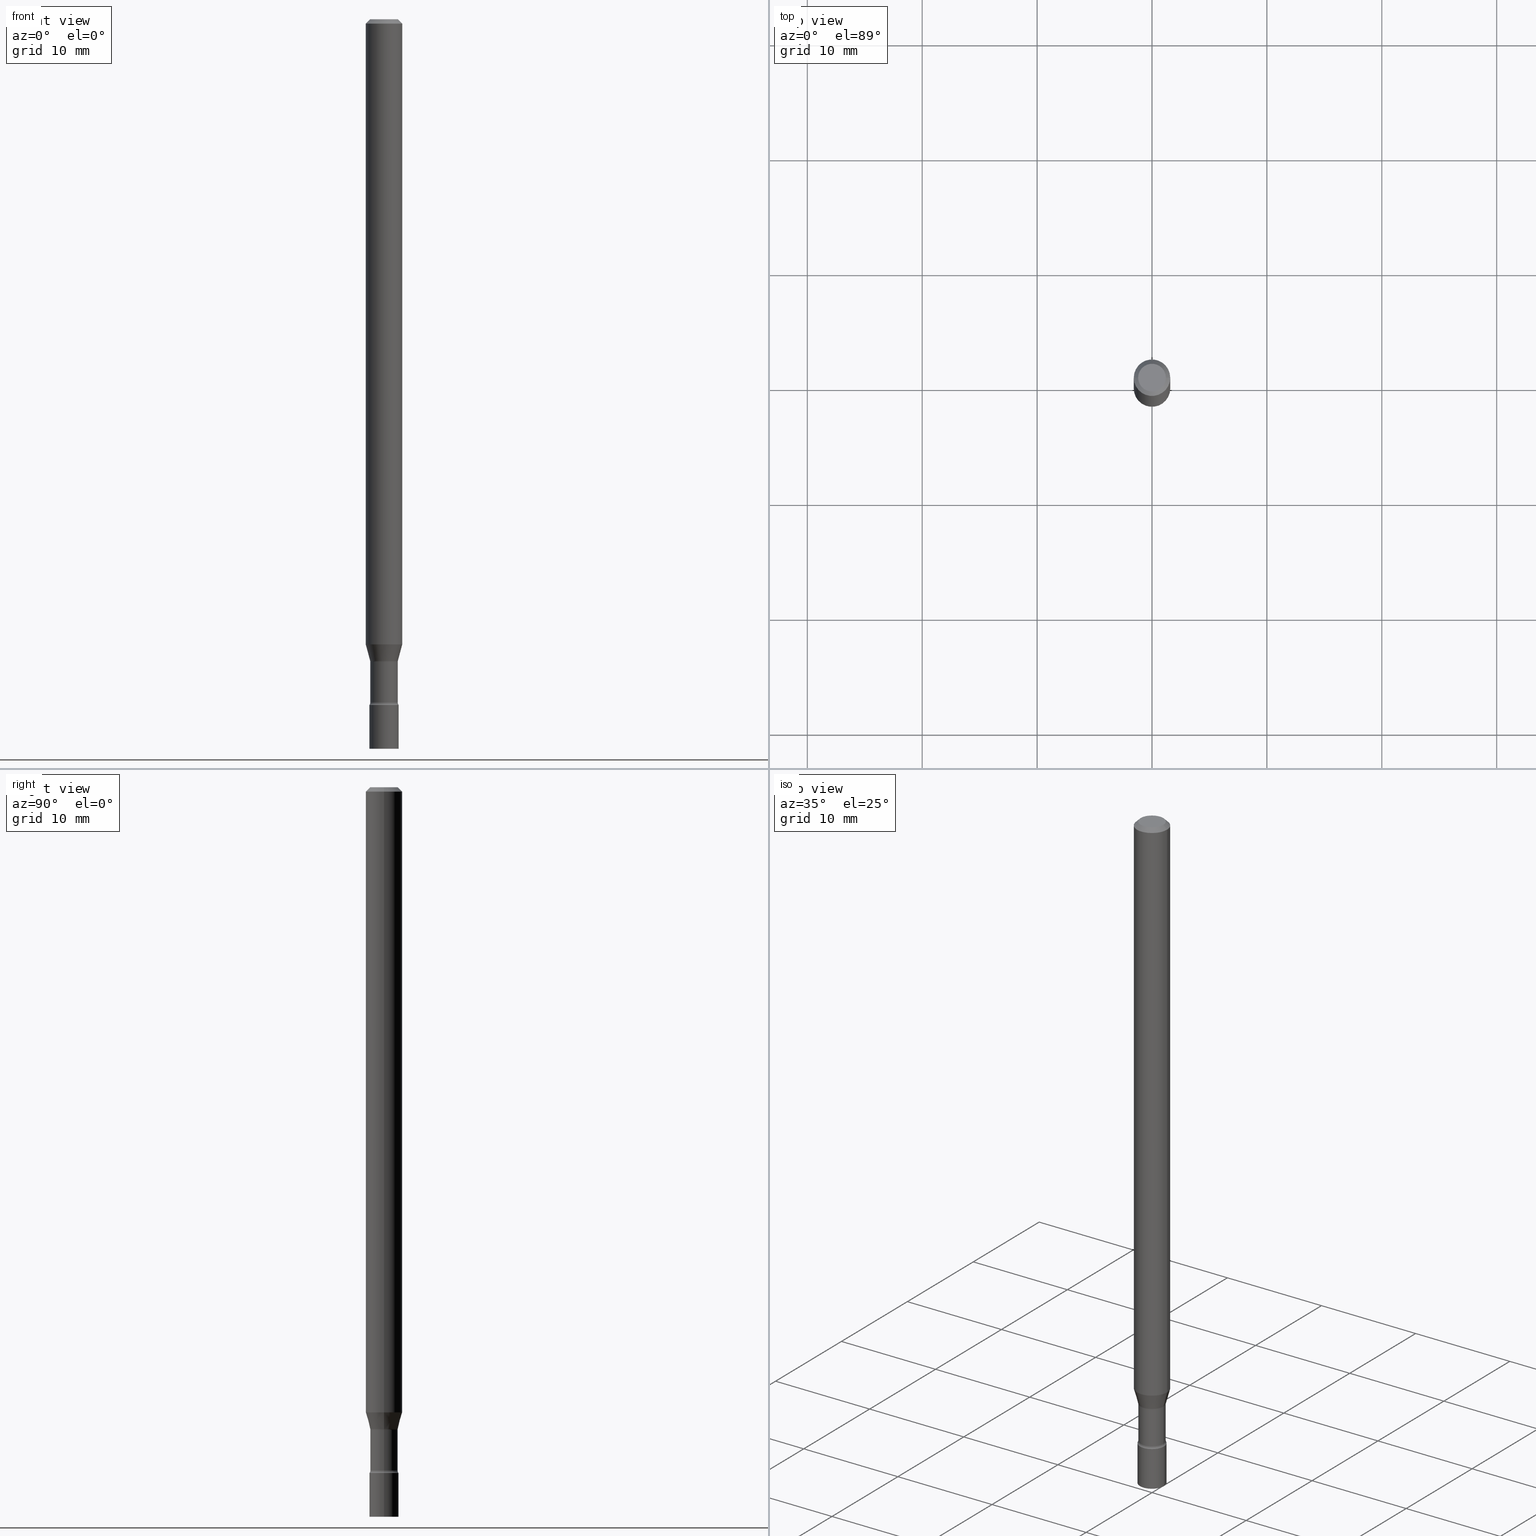
[diagram: canonical four-view strip — front | top / right | iso, engineering-drawing reading convention]
A machine part, canonical four-view strip (front | top / right | iso — engineering-drawing reading convention). The complete STEP part file that produces these views, byte-faithful:
ISO-10303-21;
HEADER;
FILE_DESCRIPTION (( 'STEP AP203' ),
    '1' );
FILE_NAME ('09760.STEP',
    '2024-03-09T01:46:32',
    ( '' ),
    ( '' ),
    'SwSTEP 2.0',
    'SolidWorks 2023',
    '' );
FILE_SCHEMA (( 'CONFIG_CONTROL_DESIGN' ));
ENDSEC;

DATA;
#1 = CARTESIAN_POINT ( 'NONE',  ( 3.491481338843744722E-16, 0.04999999999999128059, -2.500000000000000000 ) ) ;
#2 = DIRECTION ( 'NONE',  ( 2.445468806185136597E-29, -3.491481338843145583E-15, -1.000000000000000000 ) ) ;
#3 = CIRCLE ( 'NONE', #237, 0.04699999999999998623 ) ;
#4 = DIRECTION ( 'NONE',  ( 2.445468806185136597E-29, -3.491481338843145583E-15, -1.000000000000000000 ) ) ;
#5 = AXIS2_PLACEMENT_3D ( 'NONE', #14, #457, #186 ) ;
#6 = VECTOR ( 'NONE', #365, 39.37007874015748143 ) ;
#7 = CALENDAR_DATE ( 2024, 8, 3 ) ;
#8 = CARTESIAN_POINT ( 'NONE',  ( 0.06250000000000000000, -4.888073874380389458E-16, -0.01500000000000003067 ) ) ;
#9 =( NAMED_UNIT ( * ) SI_UNIT ( $, .STERADIAN. ) SOLID_ANGLE_UNIT ( ) );
#10 = CC_DESIGN_SECURITY_CLASSIFICATION ( #399, ( #262 ) ) ;
#11 = EDGE_CURVE ( 'NONE', #35, #382, #162, .T. ) ;
#12 = DIRECTION ( 'NONE',  ( 1.000000000000000000, -6.982962677686273021E-15, 0.000000000000000000 ) ) ;
#13 = PERSON_AND_ORGANIZATION_ROLE ( 'design_supplier' ) ;
#14 = CARTESIAN_POINT ( 'NONE',  ( 0.06199999999999999956, -8.121097565049546589E-15, -2.201974787463810923 ) ) ;
#15 = CARTESIAN_POINT ( 'NONE',  ( 3.491481338843707252E-16, 0.04999999999999180100, -2.350000000000000089 ) ) ;
#16 = EDGE_CURVE ( 'NONE', #110, #83, #370, .T. ) ;
#17 = DATE_AND_TIME ( #466, #243 ) ;
#18 = DIRECTION ( 'NONE',  ( 1.000000000000000000, -6.982962677686269077E-15, 0.000000000000000000 ) ) ;
#19 = AXIS2_PLACEMENT_3D ( 'NONE', #517, #311, #440 ) ;
#20 = EDGE_LOOP ( 'NONE', ( #240, #387 ) ) ;
#21 = AXIS2_PLACEMENT_3D ( 'NONE', #66, #212, #18 ) ;
#22 = ORIENTED_EDGE ( 'NONE', *, *, #170, .F. ) ;
#23 = DIRECTION ( 'NONE',  ( 1.000000000000000000, -6.982962677686274599E-15, 0.000000000000000000 ) ) ;
#24 = DIRECTION ( 'NONE',  ( -2.445468806185136877E-29, 3.491481338843145188E-15, 1.000000000000000000 ) ) ;
#25 = CARTESIAN_POINT ( 'NONE',  ( 0.05000000000000000278, -8.554129280165705119E-15, -2.349999999999999645 ) ) ;
#26 = EDGE_CURVE ( 'NONE', #35, #110, #513, .T. ) ;
#27 = ORIENTED_EDGE ( 'NONE', *, *, #516, .T. ) ;
#28 = CIRCLE ( 'NONE', #411, 0.05000000000000000278 ) ;
#29 = LOCAL_TIME ( 20, 46, 32.00000000000000000, #377 ) ;
#30 = AXIS2_PLACEMENT_3D ( 'NONE', #248, #410, #36 ) ;
#31 = DIRECTION ( 'NONE',  ( -2.445468806185136597E-29, 3.491481338843145583E-15, 1.000000000000000000 ) ) ;
#32 = FACE_OUTER_BOUND ( 'NONE', #213, .T. ) ;
#33 = EDGE_CURVE ( 'NONE', #286, #265, #360, .T. ) ;
#34 = FACE_OUTER_BOUND ( 'NONE', #501, .T. ) ;
#35 = VERTEX_POINT ( 'NONE', #108 ) ;
#36 = DIRECTION ( 'NONE',  ( 1.000000000000000000, -6.982962677686274599E-15, 0.000000000000000000 ) ) ;
#37 = EDGE_LOOP ( 'NONE', ( #68, #354, #269, #470 ) ) ;
#38 = DIRECTION ( 'NONE',  ( 1.000000000000000000, -6.982962677686267499E-15, 4.876176775795936353E-29 ) ) ;
#39 = DIRECTION ( 'NONE',  ( -2.445468806185136597E-29, 3.491481338843145583E-15, 1.000000000000000000 ) ) ;
#40 = CC_DESIGN_PERSON_AND_ORGANIZATION_ASSIGNMENT ( #56, #181, ( #468 ) ) ;
#41 = ORIENTED_EDGE ( 'NONE', *, *, #52, .T. ) ;
#42 = AXIS2_PLACEMENT_3D ( 'NONE', #317, #229, #71 ) ;
#43 = CC_DESIGN_APPROVAL ( #490, ( #468 ) ) ;
#44 = CARTESIAN_POINT ( 'NONE',  ( 5.384860654748895550E-29, -7.688153879032997927E-15, -2.201974787463810923 ) ) ;
#45 = DESIGN_CONTEXT ( 'detailed design', #277, 'design' ) ;
#46 = CONICAL_SURFACE ( 'NONE', #392, 0.06250000000000000000, 0.7853981633974483900 ) ;
#47 = ORIENTED_EDGE ( 'NONE', *, *, #359, .F. ) ;
#48 = PRODUCT_DEFINITION_SHAPE ( 'NONE', 'NONE',  #468 ) ;
#49 = CARTESIAN_POINT ( 'NONE',  ( 0.000000000000000000, 0.000000000000000000, 0.000000000000000000 ) ) ;
#50 = DIRECTION ( 'NONE',  ( 1.000000000000000000, -6.982962677686265922E-15, 4.876176775795935793E-29 ) ) ;
#51 = ORIENTED_EDGE ( 'NONE', *, *, #201, .T. ) ;
#52 = EDGE_CURVE ( 'NONE', #368, #189, #330, .T. ) ;
#53 = PERSON_AND_ORGANIZATION ( #217, #136 ) ;
#54 = DIRECTION ( 'NONE',  ( 1.000000000000000000, -6.982962677686266711E-15, 4.876176775795935793E-29 ) ) ;
#55 = ORIENTED_EDGE ( 'NONE', *, *, #338, .F. ) ;
#56 = PERSON_AND_ORGANIZATION ( #217, #136 ) ;
#57 = VECTOR ( 'NONE', #485, 39.37007874015748143 ) ;
#58 = DIRECTION ( 'NONE',  ( -2.445468806185136597E-29, 3.491481338843145583E-15, 1.000000000000000000 ) ) ;
#59 = ORIENTED_EDGE ( 'NONE', *, *, #291, .T. ) ;
#60 = AXIS2_PLACEMENT_3D ( 'NONE', #445, #4, #239 ) ;
#61 = PERSON_AND_ORGANIZATION ( #217, #136 ) ;
#62 = DIRECTION ( 'NONE',  ( -2.445468806185136597E-29, 3.491481338843145583E-15, 1.000000000000000000 ) ) ;
#63 = EDGE_CURVE ( 'NONE', #368, #393, #489, .T. ) ;
#64 = ORIENTED_EDGE ( 'NONE', *, *, #284, .T. ) ;
#65 =( LENGTH_UNIT ( ) NAMED_UNIT ( * ) SI_UNIT ( $, .METRE. ) );
#66 = CARTESIAN_POINT ( 'NONE',  ( 5.375366646230222807E-29, -7.674598951041308129E-15, -2.198092501787273001 ) ) ;
#67 = EDGE_LOOP ( 'NONE', ( #414, #391, #249, #104 ) ) ;
#68 = ORIENTED_EDGE ( 'NONE', *, *, #235, .T. ) ;
#69 = CYLINDRICAL_SURFACE ( 'NONE', #19, 0.04699999999999999317 ) ;
#70 = APPROVAL_DATE_TIME ( #17, #180 ) ;
#71 = DIRECTION ( 'NONE',  ( 1.000000000000000000, -6.982962677686269077E-15, 4.883557194083113462E-29 ) ) ;
#72 = CC_DESIGN_DATE_AND_TIME_ASSIGNMENT ( #93, #178, ( #468 ) ) ;
#73 = ORIENTED_EDGE ( 'NONE', *, *, #164, .F. ) ;
#74 = CARTESIAN_POINT ( 'NONE',  ( 0.04700000000000000705, -8.016353124884251642E-15, -2.201974787463810923 ) ) ;
#75 = APPROVAL_ROLE ( '' ) ;
#76 = ORIENTED_EDGE ( 'NONE', *, *, #208, .F. ) ;
#77 = CARTESIAN_POINT ( 'NONE',  ( 5.238568859195680907E-29, -7.479287966326182139E-15, -2.142153212482682534 ) ) ;
#78 = VECTOR ( 'NONE', #390, 39.37007874015748143 ) ;
#79 = AXIS2_PLACEMENT_3D ( 'NONE', #150, #117, #512 ) ;
#80 = CARTESIAN_POINT ( 'NONE',  ( 5.238568859195680907E-29, -7.479287966326182139E-15, -2.142153212482682534 ) ) ;
#81 = EDGE_CURVE ( 'NONE', #189, #216, #236, .T. ) ;
#82 = PLANE ( 'NONE',  #452 ) ;
#83 = VERTEX_POINT ( 'NONE', #8 ) ;
#84 = DIRECTION ( 'NONE',  ( -2.445468806185136597E-29, 3.491481338843145583E-15, 1.000000000000000000 ) ) ;
#85 = CARTESIAN_POINT ( 'NONE',  ( 0.000000000000000000, 0.000000000000000000, 0.000000000000000000 ) ) ;
#86 = PRODUCT ( '09760', '09760', '', ( #98 ) ) ;
#87 = PRODUCT_RELATED_PRODUCT_CATEGORY ( 'detail', '', ( #86 ) ) ;
#88 = DIRECTION ( 'NONE',  ( 1.000000000000000000, -6.982962677686267499E-15, 4.876681293081646444E-29 ) ) ;
#89 = CARTESIAN_POINT ( 'NONE',  ( 0.06200000000000002037, -8.606501500248351804E-15, -2.340999999999999748 ) ) ;
#90 = CYLINDRICAL_SURFACE ( 'NONE', #149, 0.05000000000000000278 ) ;
#91 = ORIENTED_EDGE ( 'NONE', *, *, #134, .T. ) ;
#92 = CIRCLE ( 'NONE', #437, 0.05000000000000000278 ) ;
#93 = DATE_AND_TIME ( #96, #366 ) ;
#94 = PLANE ( 'NONE',  #279 ) ;
#95 = ADVANCED_FACE ( 'NONE', ( #264 ), #375, .F. ) ;
#96 = CALENDAR_DATE ( 2024, 8, 3 ) ;
#97 = DIRECTION ( 'NONE',  ( -2.445468806185136597E-29, 3.491481338843145583E-15, 1.000000000000000000 ) ) ;
#98 = MECHANICAL_CONTEXT ( 'NONE', #472, 'mechanical' ) ;
#99 = CARTESIAN_POINT ( 'NONE',  ( 0.06250000000000000000, -7.915723133681573808E-15, -2.142153212482682534 ) ) ;
#100 = EDGE_LOOP ( 'NONE', ( #73, #226 ) ) ;
#101 = APPROVAL_STATUS ( 'not_yet_approved' ) ;
#102 = AXIS2_PLACEMENT_3D ( 'NONE', #494, #388, #173 ) ;
#103 = CARTESIAN_POINT ( 'NONE',  ( 5.724842475279403491E-29, -8.173557814231803142E-15, -2.340999999999999748 ) ) ;
#104 = ORIENTED_EDGE ( 'NONE', *, *, #372, .F. ) ;
#105 = VECTOR ( 'NONE', #515, 39.37007874015748143 ) ;
#106 = CALENDAR_DATE ( 2024, 8, 3 ) ;
#107 = EDGE_CURVE ( 'NONE', #449, #286, #438, .T. ) ;
#108 = CARTESIAN_POINT ( 'NONE',  ( -0.04749999999999999362, 3.578768372314209027E-16, -2.891391092787141902E-17 ) ) ;
#109 = ORIENTED_EDGE ( 'NONE', *, *, #198, .F. ) ;
#110 = VERTEX_POINT ( 'NONE', #227 ) ;
#111 = DIRECTION ( 'NONE',  ( 1.000000000000000000, -6.982962677686269077E-15, 4.883557194083113462E-29 ) ) ;
#112 = VERTEX_POINT ( 'NONE', #99 ) ;
#113 = CARTESIAN_POINT ( 'NONE',  ( 5.384860654748895550E-29, -7.688153879032997927E-15, -2.201974787463810923 ) ) ;
#114 = ORIENTED_EDGE ( 'NONE', *, *, #63, .T. ) ;
#115 = EDGE_CURVE ( 'NONE', #449, #374, #505, .T. ) ;
#116 = ORIENTED_EDGE ( 'NONE', *, *, #322, .T. ) ;
#117 = DIRECTION ( 'NONE',  ( -2.445468806185136597E-29, 3.491481338843145583E-15, 1.000000000000000000 ) ) ;
#118 = ADVANCED_FACE ( 'NONE', ( #225 ), #138, .T. ) ;
#119 = DIRECTION ( 'NONE',  ( -2.445468806185136597E-29, 3.491481338843145583E-15, 1.000000000000000000 ) ) ;
#120 = CIRCLE ( 'NONE', #321, 0.05000000000000000278 ) ;
#121 = LOCAL_TIME ( 20, 46, 32.00000000000000000, #296 ) ;
#122 = CARTESIAN_POINT ( 'NONE',  ( -0.06250000000000000000, -3.321740883354352190E-15, -0.01500000000000003067 ) ) ;
#123 = ORIENTED_EDGE ( 'NONE', *, *, #257, .F. ) ;
#124 = DIRECTION ( 'NONE',  ( 1.000000000000000000, -6.982962677686267499E-15, 4.876176775795936353E-29 ) ) ;
#125 = DIRECTION ( 'NONE',  ( 0.7071067811865475727, -7.319954787623256045E-15, -0.7071067811865474617 ) ) ;
#126 = AXIS2_PLACEMENT_3D ( 'NONE', #77, #200, #163 ) ;
#127 = ADVANCED_FACE ( 'NONE', ( #344 ), #142, .F. ) ;
#128 = AXIS2_PLACEMENT_3D ( 'NONE', #89, #455, #179 ) ;
#129 = CIRCLE ( 'NONE', #421, 0.04700000000000000705 ) ;
#130 = CARTESIAN_POINT ( 'NONE',  ( 7.070806723891919892E-46, -1.009523804376275404E-31, -2.891391092786900929E-17 ) ) ;
#131 = CARTESIAN_POINT ( 'NONE',  ( -0.04699999999999998623, -7.844656253412948961E-15, -2.341000000000000192 ) ) ;
#132 = ORIENTED_EDGE ( 'NONE', *, *, #208, .T. ) ;
#133 = PERSON_AND_ORGANIZATION ( #217, #136 ) ;
#134 = EDGE_CURVE ( 'NONE', #286, #216, #140, .T. ) ;
#135 = ORIENTED_EDGE ( 'NONE', *, *, #338, .T. ) ;
#136 = ORGANIZATION ( 'UNSPECIFIED', 'UNSPECIFIED', '' ) ;
#137 = DIRECTION ( 'NONE',  ( 0.000000000000000000, 0.000000000000000000, 1.000000000000000000 ) ) ;
#138 = CYLINDRICAL_SURFACE ( 'NONE', #439, 0.06250000000000000000 ) ;
#139 = PERSON_AND_ORGANIZATION ( #217, #136 ) ;
#140 = LINE ( 'NONE', #258, #78 ) ;
#141 = SECURITY_CLASSIFICATION_LEVEL ( 'unclassified' ) ;
#142 = PLANE ( 'NONE',  #351 ) ;
#143 = EDGE_LOOP ( 'NONE', ( #132, #345 ) ) ;
#144 = ADVANCED_FACE ( 'NONE', ( #177 ), #156, .T. ) ;
#145 = AXIS2_PLACEMENT_3D ( 'NONE', #80, #402, #362 ) ;
#146 = EDGE_LOOP ( 'NONE', ( #356, #336, #465, #420 ) ) ;
#147 = AXIS2_PLACEMENT_3D ( 'NONE', #424, #508, #297 ) ;
#148 = LINE ( 'NONE', #308, #446 ) ;
#149 = AXIS2_PLACEMENT_3D ( 'NONE', #165, #84, #124 ) ;
#150 = CARTESIAN_POINT ( 'NONE',  ( 3.668203209277712094E-31, -5.237222008264728876E-17, -0.01500000000000003067 ) ) ;
#151 = EDGE_CURVE ( 'NONE', #189, #368, #220, .T. ) ;
#152 = ORIENTED_EDGE ( 'NONE', *, *, #516, .F. ) ;
#153 = FACE_OUTER_BOUND ( 'NONE', #300, .T. ) ;
#154 = ORIENTED_EDGE ( 'NONE', *, *, #423, .T. ) ;
#155 = VECTOR ( 'NONE', #125, 39.37007874015748143 ) ;
#156 = CONICAL_SURFACE ( 'NONE', #168, 0.04751111260566399236, 0.2617993877991497409 ) ;
#157 = CARTESIAN_POINT ( 'NONE',  ( -0.04751111260566399236, -7.337012191742961427E-15, -2.198092501787273001 ) ) ;
#158 = ADVANCED_FACE ( 'NONE', ( #215 ), #481, .F. ) ;
#159 = CARTESIAN_POINT ( 'NONE',  ( 5.375366646230222807E-29, -7.674598951041308129E-15, -2.198092501787273001 ) ) ;
#160 = DIRECTION ( 'NONE',  ( -2.445468806185136597E-29, 3.491481338843145583E-15, 1.000000000000000000 ) ) ;
#161 = CARTESIAN_POINT ( 'NONE',  ( -0.04751111260566399236, -7.186105474109540475E-15, -2.198092501787273001 ) ) ;
#162 = LINE ( 'NONE', #324, #57 ) ;
#163 = DIRECTION ( 'NONE',  ( 1.000000000000000000, -6.982962677686262766E-15, 0.000000000000000000 ) ) ;
#164 = EDGE_CURVE ( 'NONE', #461, #191, #398, .T. ) ;
#165 = CARTESIAN_POINT ( 'NONE',  ( 0.000000000000000000, 0.000000000000000000, 0.000000000000000000 ) ) ;
#166 = AXIS2_PLACEMENT_3D ( 'NONE', #103, #502, #418 ) ;
#167 =( GEOMETRIC_REPRESENTATION_CONTEXT ( 3 ) GLOBAL_UNCERTAINTY_ASSIGNED_CONTEXT ( ( #417 ) ) GLOBAL_UNIT_ASSIGNED_CONTEXT ( ( #415, #294, #9 ) ) REPRESENTATION_CONTEXT ( 'NONE', 'WORKASPACE' ) );
#168 = AXIS2_PLACEMENT_3D ( 'NONE', #464, #222, #493 ) ;
#169 = DIRECTION ( 'NONE',  ( 1.000000000000000000, -6.982962677686269866E-15, 0.000000000000000000 ) ) ;
#170 = EDGE_CURVE ( 'NONE', #461, #203, #148, .T. ) ;
#171 = DATE_AND_TIME ( #7, #29 ) ;
#172 = ORIENTED_EDGE ( 'NONE', *, *, #316, .F. ) ;
#173 = DIRECTION ( 'NONE',  ( -1.000000000000000000, 7.105427357600985293E-15, 0.000000000000000000 ) ) ;
#174 = AXIS2_PLACEMENT_3D ( 'NONE', #518, #160, #482 ) ;
#175 = MANIFOLD_SOLID_BREP ( 'Body-Move/Copy2[1]', #252 ) ;
#176 = PERSON_AND_ORGANIZATION_ROLE ( 'creator' ) ;
#177 = FACE_OUTER_BOUND ( 'NONE', #404, .T. ) ;
#178 = DATE_TIME_ROLE ( 'creation_date' ) ;
#179 = DIRECTION ( 'NONE',  ( 1.000000000000000000, -6.982962677686251722E-15, 0.000000000000000000 ) ) ;
#180 = APPROVAL ( #309, 'UNSPECIFIED' ) ;
#181 = PERSON_AND_ORGANIZATION_ROLE ( 'creator' ) ;
#182 = EDGE_LOOP ( 'NONE', ( #231, #51, #76, #22 ) ) ;
#183 = EDGE_LOOP ( 'NONE', ( #304, #434, #511, #478 ) ) ;
#184 = AXIS2_PLACEMENT_3D ( 'NONE', #255, #416, #498 ) ;
#185 = CC_DESIGN_APPROVAL ( #495, ( #262 ) ) ;
#186 = DIRECTION ( 'NONE',  ( 1.000000000000000000, -6.982962677686262766E-15, 0.000000000000000000 ) ) ;
#187 = ORIENTED_EDGE ( 'NONE', *, *, #16, .F. ) ;
#188 = ADVANCED_FACE ( 'NONE', ( #453 ), #94, .T. ) ;
#189 = VERTEX_POINT ( 'NONE', #381 ) ;
#190 = FACE_OUTER_BOUND ( 'NONE', #37, .T. ) ;
#191 = VERTEX_POINT ( 'NONE', #342 ) ;
#192 = CARTESIAN_POINT ( 'NONE',  ( 0.04751111260566399236, -8.006367277142008680E-15, -2.198092501787273001 ) ) ;
#193 = VECTOR ( 'NONE', #480, 39.37007874015748143 ) ;
#194 = DIRECTION ( 'NONE',  ( -2.445468806185136597E-29, 3.491481338843145583E-15, 1.000000000000000000 ) ) ;
#195 = LOCAL_TIME ( 20, 46, 32.00000000000000000, #346 ) ;
#196 = AXIS2_PLACEMENT_3D ( 'NONE', #113, #194, #111 ) ;
#197 = LINE ( 'NONE', #310, #207 ) ;
#198 = EDGE_CURVE ( 'NONE', #189, #112, #400, .T. ) ;
#199 = DIRECTION ( 'NONE',  ( -2.445468806185136597E-29, 3.491481338843145583E-15, 1.000000000000000000 ) ) ;
#200 = DIRECTION ( 'NONE',  ( -2.445468806185136597E-29, 3.491481338843145583E-15, 1.000000000000000000 ) ) ;
#201 = EDGE_CURVE ( 'NONE', #191, #307, #471, .T. ) ;
#202 = CARTESIAN_POINT ( 'NONE',  ( 0.05000000000000000278, -9.077851480992178278E-15, -2.500000000000000000 ) ) ;
#203 = VERTEX_POINT ( 'NONE', #25 ) ;
#204 = DIRECTION ( 'NONE',  ( -2.445468806185136597E-29, 3.491481338843145583E-15, 1.000000000000000000 ) ) ;
#205 = PLANE ( 'NONE',  #263 ) ;
#206 = ORIENTED_EDGE ( 'NONE', *, *, #11, .T. ) ;
#207 = VECTOR ( 'NONE', #275, 39.37007874015748143 ) ;
#208 = EDGE_CURVE ( 'NONE', #203, #307, #92, .T. ) ;
#209 = AXIS2_PLACEMENT_3D ( 'NONE', #303, #97, #12 ) ;
#210 = CIRCLE ( 'NONE', #126, 0.06250000000000000000 ) ;
#211 = DIRECTION ( 'NONE',  ( 1.000000000000000000, -6.982962677686269866E-15, 0.000000000000000000 ) ) ;
#212 = DIRECTION ( 'NONE',  ( -2.445468806185136597E-29, 3.491481338843145583E-15, 1.000000000000000000 ) ) ;
#213 = EDGE_LOOP ( 'NONE', ( #223, #458, #55, #109 ) ) ;
#214 = DATE_AND_TIME ( #106, #195 ) ;
#215 = FACE_OUTER_BOUND ( 'NONE', #496, .T. ) ;
#216 = VERTEX_POINT ( 'NONE', #74 ) ;
#217 = PERSON ( 'UNSPECIFIED', 'UNSPECIFIED', 'UNSPECIFIED', ('UNSPECIFIED'), ('UNSPECIFIED'), ('UNSPECIFIED') ) ;
#218 = AXIS2_PLACEMENT_3D ( 'NONE', #245, #448, #288 ) ;
#219 = APPROVAL_STATUS ( 'not_yet_approved' ) ;
#220 = CIRCLE ( 'NONE', #184, 0.04751111260566399236 ) ;
#221 = CC_DESIGN_PERSON_AND_ORGANIZATION_ASSIGNMENT ( #139, #13, ( #262 ) ) ;
#222 = DIRECTION ( 'NONE',  ( -2.445468806185136597E-29, 3.491481338843145583E-15, 1.000000000000000000 ) ) ;
#223 = ORIENTED_EDGE ( 'NONE', *, *, #151, .T. ) ;
#224 = PERSON_AND_ORGANIZATION_ROLE ( 'design_owner' ) ;
#225 = FACE_OUTER_BOUND ( 'NONE', #510, .T. ) ;
#226 = ORIENTED_EDGE ( 'NONE', *, *, #379, .F. ) ;
#227 = CARTESIAN_POINT ( 'NONE',  ( 0.04749999999999999362, -4.035134999187579609E-16, -2.891391092786643933E-17 ) ) ;
#228 = ORIENTED_EDGE ( 'NONE', *, *, #52, .F. ) ;
#229 = DIRECTION ( 'NONE',  ( -2.445468806185136597E-29, 3.491481338843145583E-15, 1.000000000000000000 ) ) ;
#230 = CARTESIAN_POINT ( 'NONE',  ( -0.04699999999999999317, 3.339550858072470388E-16, -2.311899492419805370E-30 ) ) ;
#231 = ORIENTED_EDGE ( 'NONE', *, *, #164, .T. ) ;
#232 = CYLINDRICAL_SURFACE ( 'NONE', #250, 0.04699999999999999317 ) ;
#233 = CONICAL_SURFACE ( 'NONE', #60, 0.06250000000000000000, 0.7853981633974483900 ) ;
#234 = DIRECTION ( 'NONE',  ( -2.445468806185136597E-29, 3.491481338843145583E-15, 1.000000000000000000 ) ) ;
#235 = EDGE_CURVE ( 'NONE', #286, #449, #3, .T. ) ;
#236 = CIRCLE ( 'NONE', #5, 0.01500000000000001159 ) ;
#237 = AXIS2_PLACEMENT_3D ( 'NONE', #238, #31, #475 ) ;
#238 = CARTESIAN_POINT ( 'NONE',  ( 5.724842475279404612E-29, -8.173557814231803142E-15, -2.341000000000000192 ) ) ;
#239 = DIRECTION ( 'NONE',  ( -1.000000000000000000, 6.982962677686266711E-15, 0.000000000000000000 ) ) ;
#240 = ORIENTED_EDGE ( 'NONE', *, *, #459, .F. ) ;
#241 = ADVANCED_FACE ( 'NONE', ( #190 ), #69, .T. ) ;
#242 = CARTESIAN_POINT ( 'NONE',  ( 3.668203209277712094E-31, -5.237222008264728876E-17, -0.01500000000000003067 ) ) ;
#243 = LOCAL_TIME ( 20, 46, 32.00000000000000000, #474 ) ;
#244 = FACE_OUTER_BOUND ( 'NONE', #272, .T. ) ;
#245 = CARTESIAN_POINT ( 'NONE',  ( 7.070806723891919892E-46, -1.009523804376275404E-31, -2.891391092786900929E-17 ) ) ;
#246 = CARTESIAN_POINT ( 'NONE',  ( 5.384860654748895550E-29, -7.688153879032997927E-15, -2.201974787463810923 ) ) ;
#247 = ADVANCED_FACE ( 'NONE', ( #153 ), #232, .T. ) ;
#248 = CARTESIAN_POINT ( 'NONE',  ( 5.746851694535070554E-29, -8.204981146281391784E-15, -2.349999999999999645 ) ) ;
#249 = ORIENTED_EDGE ( 'NONE', *, *, #170, .T. ) ;
#250 = AXIS2_PLACEMENT_3D ( 'NONE', #435, #119, #509 ) ;
#251 = AXIS2_PLACEMENT_3D ( 'NONE', #327, #407, #38 ) ;
#252 = CLOSED_SHELL ( 'NONE', ( #444, #188, #484, #389 ) ) ;
#253 = DIRECTION ( 'NONE',  ( -1.000000000000000000, 7.105427357600974249E-15, 0.000000000000000000 ) ) ;
#254 = APPROVAL_ROLE ( '' ) ;
#255 = CARTESIAN_POINT ( 'NONE',  ( 5.375366646230222807E-29, -7.674598951041308129E-15, -2.198092501787273001 ) ) ;
#256 = ORIENTED_EDGE ( 'NONE', *, *, #459, .T. ) ;
#257 = EDGE_CURVE ( 'NONE', #368, #313, #280, .T. ) ;
#258 = CARTESIAN_POINT ( 'NONE',  ( 0.04699999999999999317, -3.281992458512545038E-16, 2.291803084624089879E-30 ) ) ;
#259 = ORIENTED_EDGE ( 'NONE', *, *, #26, .F. ) ;
#260 = ORIENTED_EDGE ( 'NONE', *, *, #235, .F. ) ;
#261 = CIRCLE ( 'NONE', #79, 0.06250000000000000000 ) ;
#262 = PRODUCT_DEFINITION_FORMATION_WITH_SPECIFIED_SOURCE ( 'ANY', '', #86, .NOT_KNOWN. ) ;
#263 = AXIS2_PLACEMENT_3D ( 'NONE', #403, #285, #373 ) ;
#264 = FACE_OUTER_BOUND ( 'NONE', #146, .T. ) ;
#265 = VERTEX_POINT ( 'NONE', #397 ) ;
#266 = PERSON_AND_ORGANIZATION ( #217, #136 ) ;
#267 = DIRECTION ( 'NONE',  ( -2.438088387897960049E-29, 3.491481338843145188E-15, 1.000000000000000000 ) ) ;
#268 = ADVANCED_FACE ( 'NONE', ( #357 ), #331, .F. ) ;
#269 = ORIENTED_EDGE ( 'NONE', *, *, #507, .F. ) ;
#270 = ORIENTED_EDGE ( 'NONE', *, *, #319, .T. ) ;
#271 = FACE_OUTER_BOUND ( 'NONE', #469, .T. ) ;
#272 = EDGE_LOOP ( 'NONE', ( #476, #432 ) ) ;
#273 = CARTESIAN_POINT ( 'NONE',  ( 0.04699999999999998623, -8.501757060083058435E-15, -2.341000000000000192 ) ) ;
#274 = ORIENTED_EDGE ( 'NONE', *, *, #284, .F. ) ;
#275 = DIRECTION ( 'NONE',  ( -2.445468806185136877E-29, 3.491481338843145188E-15, 1.000000000000000000 ) ) ;
#276 = CC_DESIGN_PERSON_AND_ORGANIZATION_ASSIGNMENT ( #422, #224, ( #86 ) ) ;
#277 = APPLICATION_CONTEXT ( 'configuration controlled 3d designs of mechanical parts and assemblies' ) ;
#278 = CARTESIAN_POINT ( 'NONE',  ( 5.746851694535070554E-29, -8.204981146281391784E-15, -2.349999999999999645 ) ) ;
#279 = AXIS2_PLACEMENT_3D ( 'NONE', #384, #413, #50 ) ;
#280 = LINE ( 'NONE', #157, #105 ) ;
#281 = AXIS2_PLACEMENT_3D ( 'NONE', #339, #353, #253 ) ;
#282 = CONICAL_SURFACE ( 'NONE', #514, 0.04751111260566399236, 0.2617993877991497409 ) ;
#283 = DIRECTION ( 'NONE',  ( 1.000000000000000000, -6.982962677686274599E-15, 0.000000000000000000 ) ) ;
#284 = EDGE_CURVE ( 'NONE', #313, #112, #506, .T. ) ;
#285 = DIRECTION ( 'NONE',  ( 2.438088387897960049E-29, -3.491481338843145188E-15, -1.000000000000000000 ) ) ;
#286 = VERTEX_POINT ( 'NONE', #273 ) ;
#287 = CYLINDRICAL_SURFACE ( 'NONE', #251, 0.05000000000000000278 ) ;
#288 = DIRECTION ( 'NONE',  ( 1.000000000000000000, -6.982962677686267499E-15, 4.876681293081646444E-29 ) ) ;
#289 = AXIS2_PLACEMENT_3D ( 'NONE', #295, #58, #386 ) ;
#290 = CARTESIAN_POINT ( 'NONE',  ( 6.113672015462842613E-29, -8.728703347107864943E-15, -2.500000000000000000 ) ) ;
#291 = EDGE_CURVE ( 'NONE', #112, #83, #197, .T. ) ;
#292 = DIRECTION ( 'NONE',  ( 2.438088387897960049E-29, -3.491481338843145188E-15, -1.000000000000000000 ) ) ;
#293 = ORIENTED_EDGE ( 'NONE', *, *, #115, .F. ) ;
#294 =( NAMED_UNIT ( * ) PLANE_ANGLE_UNIT ( ) SI_UNIT ( $, .RADIAN. ) );
#295 = CARTESIAN_POINT ( 'NONE',  ( 6.113672015462842613E-29, -8.728703347107864943E-15, -2.500000000000000000 ) ) ;
#296 = COORDINATED_UNIVERSAL_TIME_OFFSET ( 5, 0, .BEHIND. ) ;
#297 = DIRECTION ( 'NONE',  ( 1.000000000000000000, -6.982962677686264344E-15, 4.883557194083111780E-29 ) ) ;
#298 = ADVANCED_FACE ( 'NONE', ( #271 ), #503, .F. ) ;
#299 = CARTESIAN_POINT ( 'NONE',  ( 0.000000000000000000, 0.000000000000000000, 0.000000000000000000 ) ) ;
#300 = EDGE_LOOP ( 'NONE', ( #172, #378, #91, #499 ) ) ;
#301 = DIMENSIONAL_EXPONENTS ( 1.000000000000000000, 0.000000000000000000, 0.000000000000000000, 0.000000000000000000, 0.000000000000000000, 0.000000000000000000, 0.000000000000000000 ) ;
#302 = PERSON_AND_ORGANIZATION_ROLE ( 'classification_officer' ) ;
#303 = CARTESIAN_POINT ( 'NONE',  ( 5.724842475279404612E-29, -8.173557814231803142E-15, -2.341000000000000192 ) ) ;
#304 = ORIENTED_EDGE ( 'NONE', *, *, #63, .F. ) ;
#305 = ADVANCED_FACE ( 'NONE', ( #32 ), #282, .T. ) ;
#306 = CIRCLE ( 'NONE', #376, 0.05000000000000000278 ) ;
#307 = VERTEX_POINT ( 'NONE', #467 ) ;
#308 = CARTESIAN_POINT ( 'NONE',  ( 0.05000000000000000278, -3.491481338843133848E-16, 2.438088387897968247E-30 ) ) ;
#309 = APPROVAL_STATUS ( 'not_yet_approved' ) ;
#310 = CARTESIAN_POINT ( 'NONE',  ( 0.06250000000000000000, -4.364351673553916694E-16, 3.047610484872459871E-30 ) ) ;
#311 = DIRECTION ( 'NONE',  ( -2.445468806185136597E-29, 3.491481338843145583E-15, 1.000000000000000000 ) ) ;
#312 = APPROVAL_PERSON_ORGANIZATION ( #133, #180, #75 ) ;
#313 = VERTEX_POINT ( 'NONE', #429 ) ;
#314 = DIRECTION ( 'NONE',  ( -2.445468806185136597E-29, 3.491481338843145583E-15, 1.000000000000000000 ) ) ;
#315 = ORIENTED_EDGE ( 'NONE', *, *, #33, .T. ) ;
#316 = EDGE_CURVE ( 'NONE', #449, #393, #364, .T. ) ;
#317 = CARTESIAN_POINT ( 'NONE',  ( 5.384860654748895550E-29, -7.688153879032997927E-15, -2.201974787463810923 ) ) ;
#318 = ORIENTED_EDGE ( 'NONE', *, *, #198, .T. ) ;
#319 = EDGE_CURVE ( 'NONE', #313, #382, #396, .T. ) ;
#320 = DIRECTION ( 'NONE',  ( 1.000000000000000000, -6.982962677686269077E-15, 0.000000000000000000 ) ) ;
#321 = AXIS2_PLACEMENT_3D ( 'NONE', #290, #367, #520 ) ;
#322 = EDGE_CURVE ( 'NONE', #83, #382, #261, .T. ) ;
#323 = FACE_OUTER_BOUND ( 'NONE', #100, .T. ) ;
#324 = CARTESIAN_POINT ( 'NONE',  ( -0.06250000000000000000, 3.840629472727443437E-16, -0.01500000000000003067 ) ) ;
#325 = CARTESIAN_POINT ( 'NONE',  ( 5.746851694535070554E-29, -8.204981146281391784E-15, -2.349999999999999645 ) ) ;
#326 = CARTESIAN_POINT ( 'NONE',  ( 0.06250000000000000000, -4.811533449433680977E-16, -0.01500000000000003067 ) ) ;
#327 = CARTESIAN_POINT ( 'NONE',  ( 0.000000000000000000, 0.000000000000000000, 0.000000000000000000 ) ) ;
#328 = APPROVAL_PERSON_ORGANIZATION ( #61, #490, #343 ) ;
#329 = ORIENTED_EDGE ( 'NONE', *, *, #322, .F. ) ;
#330 = CIRCLE ( 'NONE', #21, 0.04751111260566399236 ) ;
#331 = TOROIDAL_SURFACE ( 'NONE', #196, 0.06199999999999999956, 0.01500000000000001506 ) ;
#332 = EDGE_CURVE ( 'NONE', #374, #265, #306, .T. ) ;
#333 = DIRECTION ( 'NONE',  ( -2.445468806185136597E-29, 3.491481338843145583E-15, 1.000000000000000000 ) ) ;
#334 = DATE_TIME_ROLE ( 'classification_date' ) ;
#335 = ORIENTED_EDGE ( 'NONE', *, *, #81, .F. ) ;
#336 = ORIENTED_EDGE ( 'NONE', *, *, #115, .T. ) ;
#337 = APPLICATION_PROTOCOL_DEFINITION ( 'international standard', 'config_control_design', 1994, #277 ) ;
#338 = EDGE_CURVE ( 'NONE', #112, #313, #210, .T. ) ;
#339 = CARTESIAN_POINT ( 'NONE',  ( -0.06200000000000002037, -7.733021318060540635E-15, -2.340999999999999748 ) ) ;
#340 = AXIS2_PLACEMENT_3D ( 'NONE', #44, #204, #211 ) ;
#341 = DIRECTION ( 'NONE',  ( 1.000000000000000000, 0.000000000000000000, 0.000000000000000000 ) ) ;
#342 = CARTESIAN_POINT ( 'NONE',  ( -0.05000000000000000278, -8.111570878814577955E-15, -2.500000000000000000 ) ) ;
#343 = APPROVAL_ROLE ( '' ) ;
#344 = FACE_OUTER_BOUND ( 'NONE', #20, .T. ) ;
#345 = ORIENTED_EDGE ( 'NONE', *, *, #372, .T. ) ;
#346 = COORDINATED_UNIVERSAL_TIME_OFFSET ( 5, 0, .BEHIND. ) ;
#347 = MANIFOLD_SOLID_BREP ( 'Body-Move/Copy2[2]', #473 ) ;
#348 = DIRECTION ( 'NONE',  ( 1.000000000000000000, -6.982962677686265922E-15, 4.876176775795935793E-29 ) ) ;
#349 = AXIS2_PLACEMENT_3D ( 'NONE', #130, #491, #88 ) ;
#350 = AXIS2_PLACEMENT_3D ( 'NONE', #49, #137, #341 ) ;
#351 = AXIS2_PLACEMENT_3D ( 'NONE', #15, #267, #348 ) ;
#352 = CIRCLE ( 'NONE', #30, 0.05000000000000000278 ) ;
#353 = DIRECTION ( 'NONE',  ( 7.105427357601001859E-15, 1.000000000000000000, -3.491481338843145583E-15 ) ) ;
#354 = ORIENTED_EDGE ( 'NONE', *, *, #316, .T. ) ;
#355 = SHAPE_DEFINITION_REPRESENTATION ( #48, #363 ) ;
#356 = ORIENTED_EDGE ( 'NONE', *, *, #107, .F. ) ;
#357 = FACE_OUTER_BOUND ( 'NONE', #183, .T. ) ;
#358 = CARTESIAN_POINT ( 'NONE',  ( 5.746851694535070554E-29, -8.204981146281391784E-15, -2.349999999999999645 ) ) ;
#359 = EDGE_CURVE ( 'NONE', #110, #35, #460, .T. ) ;
#360 = CIRCLE ( 'NONE', #128, 0.01500000000000003587 ) ;
#361 = AXIS2_PLACEMENT_3D ( 'NONE', #85, #333, #447 ) ;
#362 = DIRECTION ( 'NONE',  ( 1.000000000000000000, -6.982962677686262766E-15, 0.000000000000000000 ) ) ;
#363 = ADVANCED_BREP_SHAPE_REPRESENTATION ( '09760', ( #175, #347, #350 ), #167 ) ;
#364 = LINE ( 'NONE', #230, #6 ) ;
#365 = DIRECTION ( 'NONE',  ( -2.445468806185136877E-29, 3.491481338843145188E-15, 1.000000000000000000 ) ) ;
#366 = LOCAL_TIME ( 20, 46, 32.00000000000000000, #463 ) ;
#367 = DIRECTION ( 'NONE',  ( -2.445468806185136597E-29, 3.491481338843145583E-15, 1.000000000000000000 ) ) ;
#368 = VERTEX_POINT ( 'NONE', #161 ) ;
#369 = FACE_OUTER_BOUND ( 'NONE', #67, .T. ) ;
#370 = LINE ( 'NONE', #326, #155 ) ;
#371 = CARTESIAN_POINT ( 'NONE',  ( -0.04700000000000000705, -7.596900760825153150E-15, -2.201974787463810923 ) ) ;
#372 = EDGE_CURVE ( 'NONE', #307, #203, #28, .T. ) ;
#373 = DIRECTION ( 'NONE',  ( -1.000000000000000000, 6.982962677686265922E-15, -4.876176775795935793E-29 ) ) ;
#374 = VERTEX_POINT ( 'NONE', #441 ) ;
#375 = TOROIDAL_SURFACE ( 'NONE', #147, 0.06200000000000002037, 0.01500000000000003587 ) ;
#376 = AXIS2_PLACEMENT_3D ( 'NONE', #278, #314, #436 ) ;
#377 = COORDINATED_UNIVERSAL_TIME_OFFSET ( 5, 0, .BEHIND. ) ;
#378 = ORIENTED_EDGE ( 'NONE', *, *, #107, .T. ) ;
#379 = EDGE_CURVE ( 'NONE', #191, #461, #120, .T. ) ;
#380 = CALENDAR_DATE ( 2024, 8, 3 ) ;
#381 = CARTESIAN_POINT ( 'NONE',  ( 0.04751111260566399236, -8.006367277142008680E-15, -2.198092501787273001 ) ) ;
#382 = VERTEX_POINT ( 'NONE', #122 ) ;
#383 = PERSON_AND_ORGANIZATION ( #217, #136 ) ;
#384 = CARTESIAN_POINT ( 'NONE',  ( 5.746851694535070554E-29, -8.204981146281391784E-15, -2.349999999999999645 ) ) ;
#385 = ORIENTED_EDGE ( 'NONE', *, *, #291, .F. ) ;
#386 = DIRECTION ( 'NONE',  ( 1.000000000000000000, -6.982962677686274599E-15, 0.000000000000000000 ) ) ;
#387 = ORIENTED_EDGE ( 'NONE', *, *, #332, .F. ) ;
#388 = DIRECTION ( 'NONE',  ( 7.105427357601001859E-15, 1.000000000000000000, -3.491481338843145583E-15 ) ) ;
#389 = ADVANCED_FACE ( 'NONE', ( #323 ), #82, .T. ) ;
#390 = DIRECTION ( 'NONE',  ( -2.445468806185136877E-29, 3.491481338843145188E-15, 1.000000000000000000 ) ) ;
#391 = ORIENTED_EDGE ( 'NONE', *, *, #379, .T. ) ;
#392 = AXIS2_PLACEMENT_3D ( 'NONE', #242, #2, #483 ) ;
#393 = VERTEX_POINT ( 'NONE', #371 ) ;
#394 = CARTESIAN_POINT ( 'NONE',  ( -0.05000000000000000278, 3.552713678800501127E-16, -2.459467545127453311E-30 ) ) ;
#395 = ADVANCED_FACE ( 'NONE', ( #34 ), #46, .T. ) ;
#396 = LINE ( 'NONE', #477, #419 ) ;
#397 = CARTESIAN_POINT ( 'NONE',  ( 0.05000000000000003053, -8.554129280165705119E-15, -2.349999999999999645 ) ) ;
#398 = CIRCLE ( 'NONE', #289, 0.05000000000000000278 ) ;
#399 = SECURITY_CLASSIFICATION ( '', '', #141 ) ;
#400 = LINE ( 'NONE', #192, #462 ) ;
#401 = ADVANCED_FACE ( 'NONE', ( #486 ), #233, .T. ) ;
#402 = DIRECTION ( 'NONE',  ( -2.445468806185136597E-29, 3.491481338843145583E-15, 1.000000000000000000 ) ) ;
#403 = CARTESIAN_POINT ( 'NONE',  ( 3.316907271900976096E-16, 0.04749999999999999362, -1.803023190589839165E-16 ) ) ;
#404 = EDGE_LOOP ( 'NONE', ( #123, #41, #318, #274 ) ) ;
#405 = CYLINDRICAL_SURFACE ( 'NONE', #361, 0.06250000000000000000 ) ;
#406 = ADVANCED_FACE ( 'NONE', ( #488 ), #405, .T. ) ;
#407 = DIRECTION ( 'NONE',  ( -2.445468806185136597E-29, 3.491481338843145583E-15, 1.000000000000000000 ) ) ;
#408 = DIRECTION ( 'NONE',  ( -2.445468806185136597E-29, 3.491481338843145583E-15, 1.000000000000000000 ) ) ;
#409 = EDGE_LOOP ( 'NONE', ( #187, #259, #206, #27 ) ) ;
#410 = DIRECTION ( 'NONE',  ( -2.445468806185136597E-29, 3.491481338843145583E-15, 1.000000000000000000 ) ) ;
#411 = AXIS2_PLACEMENT_3D ( 'NONE', #325, #408, #283 ) ;
#412 = APPROVAL_PERSON_ORGANIZATION ( #53, #495, #254 ) ;
#413 = DIRECTION ( 'NONE',  ( -2.438088387897960049E-29, 3.491481338843145188E-15, 1.000000000000000000 ) ) ;
#414 = ORIENTED_EDGE ( 'NONE', *, *, #201, .F. ) ;
#415 =( CONVERSION_BASED_UNIT ( 'INCH', #500 ) LENGTH_UNIT ( ) NAMED_UNIT ( #301 ) );
#416 = DIRECTION ( 'NONE',  ( -2.445468806185136597E-29, 3.491481338843145583E-15, 1.000000000000000000 ) ) ;
#417 = UNCERTAINTY_MEASURE_WITH_UNIT (LENGTH_MEASURE( 1.000000000000000082E-05 ), #415, 'distance_accuracy_value', 'NONE');
#418 = DIRECTION ( 'NONE',  ( 1.000000000000000000, -6.982962677686264344E-15, 4.883557194083111780E-29 ) ) ;
#419 = VECTOR ( 'NONE', #24, 39.37007874015748143 ) ;
#420 = ORIENTED_EDGE ( 'NONE', *, *, #33, .F. ) ;
#421 = AXIS2_PLACEMENT_3D ( 'NONE', #246, #39, #169 ) ;
#422 = PERSON_AND_ORGANIZATION ( #217, #136 ) ;
#423 = EDGE_CURVE ( 'NONE', #393, #216, #129, .T. ) ;
#424 = CARTESIAN_POINT ( 'NONE',  ( 5.724842475279403491E-29, -8.173557814231803142E-15, -2.340999999999999748 ) ) ;
#425 = ORIENTED_EDGE ( 'NONE', *, *, #16, .T. ) ;
#426 = DIRECTION ( 'NONE',  ( -2.445468806185136877E-29, 3.491481338843145188E-15, 1.000000000000000000 ) ) ;
#427 = ORIENTED_EDGE ( 'NONE', *, *, #11, .F. ) ;
#428 = EDGE_LOOP ( 'NONE', ( #442, #64, #59, #152 ) ) ;
#429 = CARTESIAN_POINT ( 'NONE',  ( -0.06250000000000000000, -7.035198756476119523E-15, -2.142153212482682534 ) ) ;
#430 = CIRCLE ( 'NONE', #174, 0.06250000000000000000 ) ;
#431 = ADVANCED_FACE ( 'NONE', ( #244 ), #205, .F. ) ;
#432 = ORIENTED_EDGE ( 'NONE', *, *, #359, .T. ) ;
#433 = DIRECTION ( 'NONE',  ( 0.2588190451025210725, 1.565188264969624137E-15, 0.9659258262890682012 ) ) ;
#434 = ORIENTED_EDGE ( 'NONE', *, *, #151, .F. ) ;
#435 = CARTESIAN_POINT ( 'NONE',  ( 0.000000000000000000, 0.000000000000000000, 0.000000000000000000 ) ) ;
#436 = DIRECTION ( 'NONE',  ( 1.000000000000000000, -6.982962677686274599E-15, 0.000000000000000000 ) ) ;
#437 = AXIS2_PLACEMENT_3D ( 'NONE', #358, #234, #23 ) ;
#438 = CIRCLE ( 'NONE', #209, 0.04699999999999998623 ) ;
#439 = AXIS2_PLACEMENT_3D ( 'NONE', #299, #62, #54 ) ;
#440 = DIRECTION ( 'NONE',  ( 1.000000000000000000, -6.982962677686266711E-15, 4.876176775795936353E-29 ) ) ;
#441 = CARTESIAN_POINT ( 'NONE',  ( -0.05000000000000003053, -7.849709778401341375E-15, -2.349999999999999645 ) ) ;
#442 = ORIENTED_EDGE ( 'NONE', *, *, #319, .F. ) ;
#443 = FACE_OUTER_BOUND ( 'NONE', #182, .T. ) ;
#444 = ADVANCED_FACE ( 'NONE', ( #443 ), #90, .T. ) ;
#445 = CARTESIAN_POINT ( 'NONE',  ( 3.668203209277712094E-31, -5.237222008264728876E-17, -0.01500000000000003067 ) ) ;
#446 = VECTOR ( 'NONE', #426, 39.37007874015748143 ) ;
#447 = DIRECTION ( 'NONE',  ( 1.000000000000000000, -6.982962677686266711E-15, 4.876176775795935793E-29 ) ) ;
#448 = DIRECTION ( 'NONE',  ( -2.445468806185136597E-29, 3.491481338843145583E-15, 1.000000000000000000 ) ) ;
#449 = VERTEX_POINT ( 'NONE', #131 ) ;
#450 = DIRECTION ( 'NONE',  ( -1.000000000000000000, 6.982962677686265922E-15, -4.876176775795935793E-29 ) ) ;
#451 = CC_DESIGN_PERSON_AND_ORGANIZATION_ASSIGNMENT ( #266, #302, ( #399 ) ) ;
#452 = AXIS2_PLACEMENT_3D ( 'NONE', #1, #292, #450 ) ;
#453 = FACE_OUTER_BOUND ( 'NONE', #143, .T. ) ;
#454 = APPROVAL_DATE_TIME ( #492, #490 ) ;
#455 = DIRECTION ( 'NONE',  ( -6.982962677686266711E-15, -1.000000000000000000, 3.491481338843145583E-15 ) ) ;
#456 = APPLICATION_PROTOCOL_DEFINITION ( 'international standard', 'config_control_design', 1994, #472 ) ;
#457 = DIRECTION ( 'NONE',  ( -6.982962677686266711E-15, -1.000000000000000000, 3.491481338843145583E-15 ) ) ;
#458 = ORIENTED_EDGE ( 'NONE', *, *, #257, .T. ) ;
#459 = EDGE_CURVE ( 'NONE', #265, #374, #352, .T. ) ;
#460 = CIRCLE ( 'NONE', #349, 0.04749999999999999362 ) ;
#461 = VERTEX_POINT ( 'NONE', #202 ) ;
#462 = VECTOR ( 'NONE', #433, 39.37007874015748143 ) ;
#463 = COORDINATED_UNIVERSAL_TIME_OFFSET ( 5, 0, .BEHIND. ) ;
#464 = CARTESIAN_POINT ( 'NONE',  ( 5.375366646230222807E-29, -7.674598951041308129E-15, -2.198092501787273001 ) ) ;
#465 = ORIENTED_EDGE ( 'NONE', *, *, #332, .T. ) ;
#466 = CALENDAR_DATE ( 2024, 8, 3 ) ;
#467 = CARTESIAN_POINT ( 'NONE',  ( -0.05000000000000000278, -8.111570878814577955E-15, -2.349999999999999645 ) ) ;
#468 = PRODUCT_DEFINITION ( 'UNKNOWN', '', #262, #45 ) ;
#469 = EDGE_LOOP ( 'NONE', ( #228, #114, #154, #335 ) ) ;
#470 = ORIENTED_EDGE ( 'NONE', *, *, #134, .F. ) ;
#471 = LINE ( 'NONE', #394, #193 ) ;
#472 = APPLICATION_CONTEXT ( 'configuration controlled 3d designs of mechanical parts and assemblies' ) ;
#473 = CLOSED_SHELL ( 'NONE', ( #298, #241, #95, #395, #118, #305, #144, #406, #401, #431, #127, #158, #247, #268 ) ) ;
#474 = COORDINATED_UNIVERSAL_TIME_OFFSET ( 5, 0, .BEHIND. ) ;
#475 = DIRECTION ( 'NONE',  ( 1.000000000000000000, -6.982962677686273021E-15, 0.000000000000000000 ) ) ;
#476 = ORIENTED_EDGE ( 'NONE', *, *, #26, .T. ) ;
#477 = CARTESIAN_POINT ( 'NONE',  ( -0.06250000000000000000, 4.440892098500626162E-16, -3.074334431409316114E-30 ) ) ;
#478 = ORIENTED_EDGE ( 'NONE', *, *, #507, .T. ) ;
#479 = CC_DESIGN_DATE_AND_TIME_ASSIGNMENT ( #171, #334, ( #399 ) ) ;
#480 = DIRECTION ( 'NONE',  ( -2.445468806185136877E-29, 3.491481338843145188E-15, 1.000000000000000000 ) ) ;
#481 = TOROIDAL_SURFACE ( 'NONE', #166, 0.06200000000000002037, 0.01500000000000003587 ) ;
#482 = DIRECTION ( 'NONE',  ( 1.000000000000000000, -6.982962677686266711E-15, 0.000000000000000000 ) ) ;
#483 = DIRECTION ( 'NONE',  ( -1.000000000000000000, 6.982962677686266711E-15, 0.000000000000000000 ) ) ;
#484 = ADVANCED_FACE ( 'NONE', ( #369 ), #287, .T. ) ;
#485 = DIRECTION ( 'NONE',  ( -0.7071067811865475727, 2.468850131082257455E-15, -0.7071067811865474617 ) ) ;
#486 = FACE_OUTER_BOUND ( 'NONE', #409, .T. ) ;
#487 = CIRCLE ( 'NONE', #340, 0.04700000000000000705 ) ;
#488 = FACE_OUTER_BOUND ( 'NONE', #428, .T. ) ;
#489 = CIRCLE ( 'NONE', #102, 0.01500000000000001159 ) ;
#490 = APPROVAL ( #101, 'UNSPECIFIED' ) ;
#491 = DIRECTION ( 'NONE',  ( -2.445468806185136597E-29, 3.491481338843145583E-15, 1.000000000000000000 ) ) ;
#492 = DATE_AND_TIME ( #380, #121 ) ;
#493 = DIRECTION ( 'NONE',  ( 1.000000000000000000, -6.982962677686269077E-15, 0.000000000000000000 ) ) ;
#494 = CARTESIAN_POINT ( 'NONE',  ( -0.06199999999999999956, -7.247617382861735420E-15, -2.201974787463810923 ) ) ;
#495 = APPROVAL ( #219, 'UNSPECIFIED' ) ;
#496 = EDGE_LOOP ( 'NONE', ( #293, #260, #315, #256 ) ) ;
#497 = APPROVAL_DATE_TIME ( #214, #495 ) ;
#498 = DIRECTION ( 'NONE',  ( 1.000000000000000000, -6.982962677686269077E-15, 0.000000000000000000 ) ) ;
#499 = ORIENTED_EDGE ( 'NONE', *, *, #423, .F. ) ;
#500 = LENGTH_MEASURE_WITH_UNIT ( LENGTH_MEASURE( 0.02539999999999999897 ), #65 );
#501 = EDGE_LOOP ( 'NONE', ( #47, #425, #116, #427 ) ) ;
#502 = DIRECTION ( 'NONE',  ( -2.445468806185136597E-29, 3.491481338843145583E-15, 1.000000000000000000 ) ) ;
#503 = TOROIDAL_SURFACE ( 'NONE', #42, 0.06199999999999999956, 0.01500000000000001506 ) ;
#504 = CC_DESIGN_APPROVAL ( #180, ( #399 ) ) ;
#505 = CIRCLE ( 'NONE', #281, 0.01500000000000003587 ) ;
#506 = CIRCLE ( 'NONE', #145, 0.06250000000000000000 ) ;
#507 = EDGE_CURVE ( 'NONE', #216, #393, #487, .T. ) ;
#508 = DIRECTION ( 'NONE',  ( -2.445468806185136597E-29, 3.491481338843145583E-15, 1.000000000000000000 ) ) ;
#509 = DIRECTION ( 'NONE',  ( 1.000000000000000000, -6.982962677686266711E-15, 4.876176775795936353E-29 ) ) ;
#510 = EDGE_LOOP ( 'NONE', ( #135, #270, #329, #385 ) ) ;
#511 = ORIENTED_EDGE ( 'NONE', *, *, #81, .T. ) ;
#512 = DIRECTION ( 'NONE',  ( 1.000000000000000000, -6.982962677686266711E-15, 0.000000000000000000 ) ) ;
#513 = CIRCLE ( 'NONE', #218, 0.04749999999999999362 ) ;
#514 = AXIS2_PLACEMENT_3D ( 'NONE', #159, #199, #320 ) ;
#515 = DIRECTION ( 'NONE',  ( -0.2588190451025210725, 5.211531920934548675E-15, 0.9659258262890682012 ) ) ;
#516 = EDGE_CURVE ( 'NONE', #382, #83, #430, .T. ) ;
#517 = CARTESIAN_POINT ( 'NONE',  ( 0.000000000000000000, 0.000000000000000000, 0.000000000000000000 ) ) ;
#518 = CARTESIAN_POINT ( 'NONE',  ( 3.668203209277712094E-31, -5.237222008264728876E-17, -0.01500000000000003067 ) ) ;
#519 = CC_DESIGN_PERSON_AND_ORGANIZATION_ASSIGNMENT ( #383, #176, ( #262 ) ) ;
#520 = DIRECTION ( 'NONE',  ( 1.000000000000000000, -6.982962677686274599E-15, 0.000000000000000000 ) ) ;
ENDSEC;
END-ISO-10303-21;
